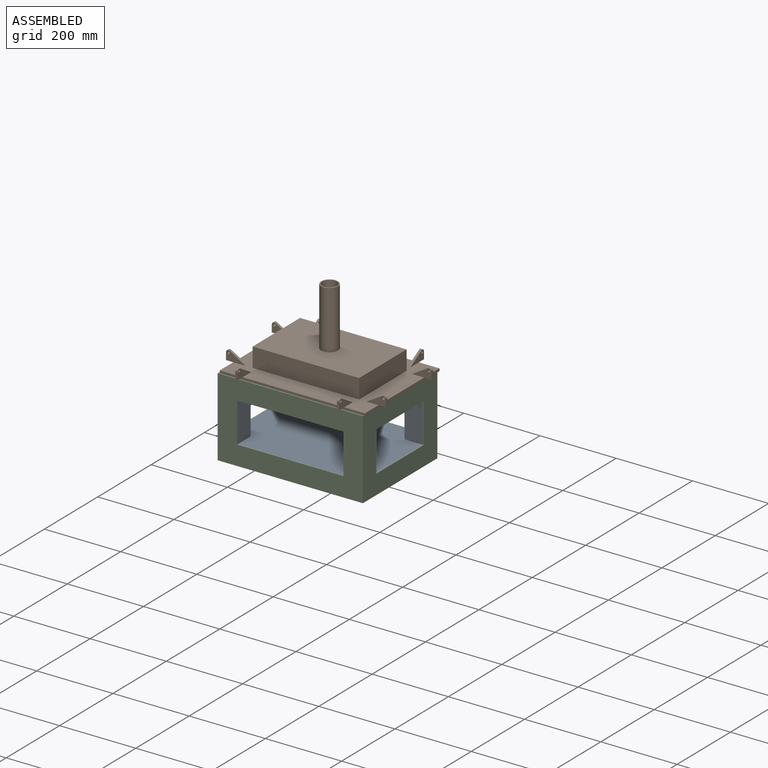
[diagram: assembled view]
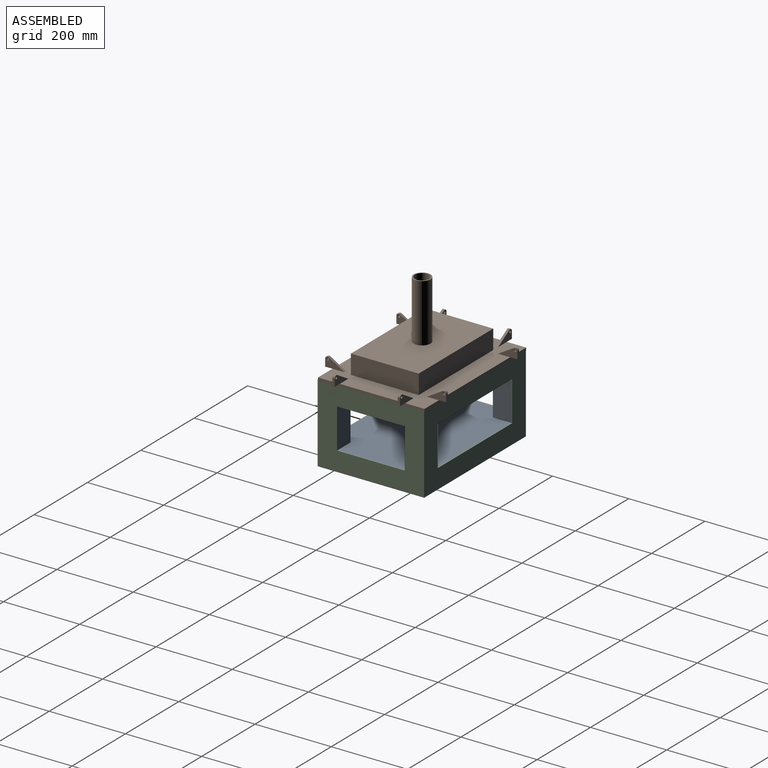
[diagram: assembled view, second angle]
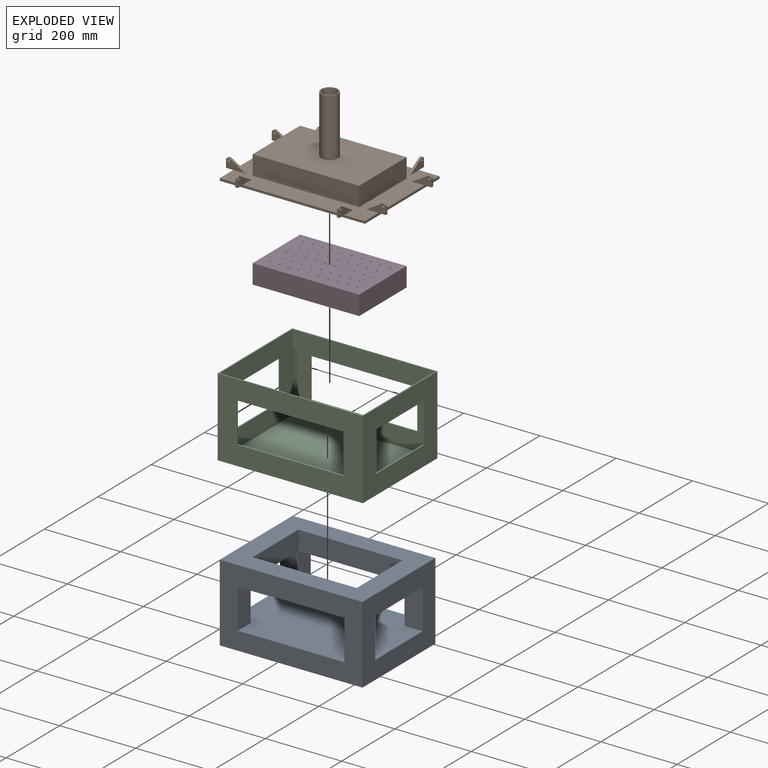
[diagram: exploded view]
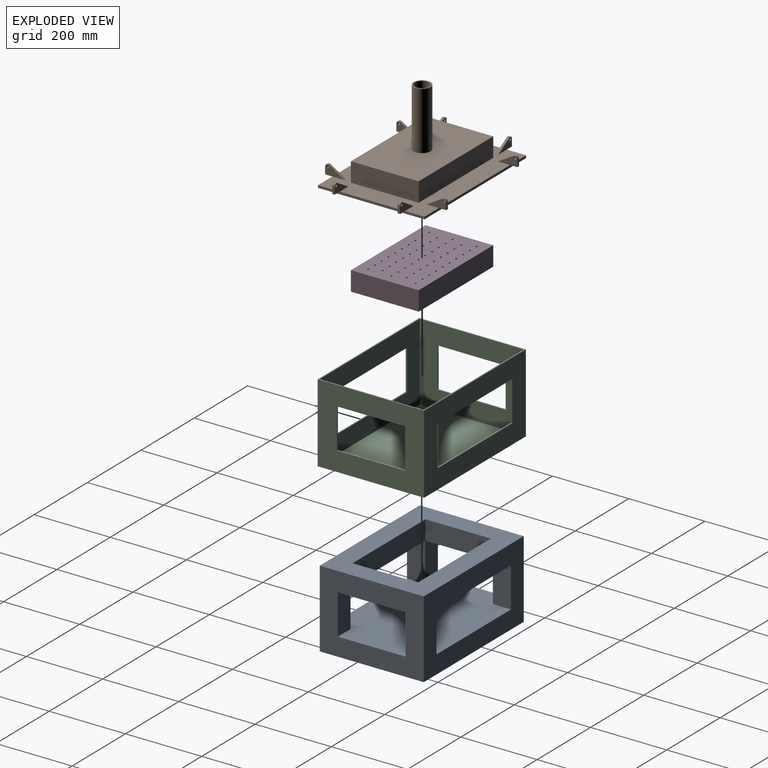
[diagram: exploded view, second angle]
ASSEMBLY  parts=4 mates=9
PART A: 20 faces, bbox 374.7x273.1x203.2 mm
  f0: plane 374.65x273.05mm, normal (0,0,1), area 93225.6mm2, adj f1,f2,f3,f4,f6,f7,f8,f9
  f1: plane 273.05x203.2mm, normal (-1,0,0), area 36854.8mm2, adj f0,f2,f4,f5,f6,f12,f14,f19
  f2: plane 374.65x203.2mm, normal (0,-1,0), area 46854.7mm2, adj f0,f1,f3,f5,f11,f13,f14,f19
  f3: plane 273.05x203.2mm, normal (1,0,0), area 36854.8mm2, adj f0,f2,f4,f5,f9,f10,f14,f19
  f4: plane 374.65x203.2mm, normal (0,1,0), area 46854.7mm2, adj f0,f1,f3,f5,f7,f8,f14,f19
  f5: plane 374.65x273.05mm, normal (0,0,-1), area 102298.2mm2, adj f1,f2,f3,f4
  f6: plane 104.78x47.63mm, normal (0,-1,0), area 4989.9mm2, adj f0,f1,f7,f14
  f7: plane 104.78x47.63mm, normal (1,0,0), area 4989.9mm2, adj f0,f4,f6,f14
  f8: plane 104.78x47.63mm, normal (-1,0,0), area 4989.9mm2, adj f0,f4,f9,f14
  f9: plane 104.78x47.63mm, normal (0,-1,0), area 4989.9mm2, adj f0,f3,f8,f14
  f10: plane 104.78x47.63mm, normal (0,1,0), area 4989.9mm2, adj f0,f3,f11,f14
  f11: plane 104.78x47.63mm, normal (-1,0,0), area 4989.9mm2, adj f0,f2,f10,f14
  f12: plane 104.78x47.63mm, normal (0,1,0), area 4989.9mm2, adj f0,f1,f13,f14
  f13: plane 104.78x47.63mm, normal (1,0,0), area 4989.9mm2, adj f0,f2,f12,f14
  f14: plane 374.65x273.05mm, normal (0,0,-1), area 46411.2mm2, adj f1,f2,f3,f4,f6,f7,f8,f9
  f15: plane 171.45x50.8mm, normal (-1,0,0), area 8709.7mm2, adj f14,f16,f18,f19
  f16: plane 273.05x50.8mm, normal (0,1,0), area 13870.9mm2, adj f14,f15,f17,f19
  f17: plane 171.45x50.8mm, normal (1,0,0), area 8709.7mm2, adj f14,f16,f18,f19
  f18: plane 273.05x50.8mm, normal (0,-1,0), area 13870.9mm2, adj f14,f15,f17,f19
  f19: plane 374.65x273.05mm, normal (0,0,1), area 55483.8mm2, adj f1,f2,f3,f4,f15,f16,f17,f18
PART B: 80 faces, bbox 419.1x317.5x209.6 mm
  f0: plane 50.8x25.4mm, normal (-1,0,0), area 707.4mm2, adj f9,f20,f46,f69,f78,f79
  f1: plane 50.8x25.4mm, normal (1,0,0), area 707.4mm2, adj f9,f20,f46,f69,f78,f79
  f2: plane 50.8x25.4mm, normal (-1,0,0), area 707.4mm2, adj f10,f20,f47,f68,f76,f77
  f3: plane 50.8x25.4mm, normal (1,0,0), area 707.4mm2, adj f4,f20,f44,f73,f74,f75
  f4: plane 19.05x6.35mm, normal (0,1,0), area 121mm2, adj f3,f5,f44,f74
  f5: plane 50.8x25.4mm, normal (-1,0,0), area 707.4mm2, adj f4,f20,f44,f73,f74,f75
  f6: plane 50.8x25.4mm, normal (1,0,0), area 707.4mm2, adj f7,f20,f45,f70,f71,f72
  f7: plane 19.05x6.35mm, normal (0,1,0), area 121mm2, adj f6,f8,f45,f70
  f8: plane 50.8x25.4mm, normal (-1,0,0), area 707.4mm2, adj f7,f20,f45,f70,f71,f72
  f9: plane 19.05x6.35mm, normal (0,-1,0), area 121mm2, adj f0,f1,f46,f69
  f10: plane 19.05x6.35mm, normal (0,-1,0), area 121mm2, adj f2,f47,f48,f68
  f11: plane 50.8x25.4mm, normal (0,1,0), area 707.4mm2, adj f14,f20,f49,f59,f66,f67
  f12: plane 50.8x25.4mm, normal (0,-1,0), area 707.4mm2, adj f14,f20,f49,f59,f66,f67
  f13: plane 50.8x25.4mm, normal (0,1,0), area 707.4mm2, adj f20,f51,f52,f57,f60,f63
  f14: plane 19.05x6.35mm, normal (-1,0,0), area 121mm2, adj f11,f12,f49,f59
  f15: plane 19.05x6.35mm, normal (1,0,0), area 121mm2, adj f16,f17,f50,f58
  f16: plane 50.8x25.4mm, normal (0,1,0), area 707.4mm2, adj f15,f20,f50,f58,f64,f65
  f17: plane 50.8x25.4mm, normal (0,-1,0), area 707.4mm2, adj f15,f20,f50,f58,f64,f65
  f18: plane 50.8x25.4mm, normal (0,-1,0), area 707.4mm2, adj f20,f54,f55,f56,f61,f62
  f19: plane 50.8x25.4mm, normal (0,1,0), area 707.4mm2, adj f20,f54,f55,f56,f61,f62
  f20: plane 381x279.4mm, normal (0,0,1), area 55161.2mm2, adj f0,f1,f2,f3,f5,f6,f8,f11
  f21: plane 177.8x50.8mm, normal (-1,0,0), area 9032.2mm2, adj f20,f22,f24,f36
  f22: plane 279.4x50.8mm, normal (0,1,0), area 14193.5mm2, adj f20,f21,f25,f36
  f23: plane 273.05x171.45mm, normal (0,0,1), area 8104.8mm2, adj f26,f27,f28,f29,f31,f32,f33,f34
  f24: plane 279.4x50.8mm, normal (0,-1,0), area 14193.5mm2, adj f20,f21,f25,f36
  f25: plane 177.8x50.8mm, normal (1,0,0), area 9032.2mm2, adj f20,f22,f24,f36
  f26: plane 152.4x3.18mm, normal (-1,0,0), area 483.9mm2, adj f23,f27,f29,f30
  f27: plane 254x3.18mm, normal (0,1,0), area 806.5mm2, adj f23,f26,f28,f30
  f28: plane 152.4x3.18mm, normal (1,0,0), area 483.9mm2, adj f23,f27,f29,f30
  f29: plane 254x3.18mm, normal (0,-1,0), area 806.5mm2, adj f23,f26,f28,f30
  f30: plane 381x279.4mm, normal (0,0,-1), area 67741.8mm2, adj f26,f27,f28,f29,f40,f41,f42,f43
  f31: plane 171.45x50.8mm, normal (-1,0,0), area 8709.7mm2, adj f23,f32,f34,f37
  f32: plane 273.05x50.8mm, normal (0,1,0), area 13870.9mm2, adj f23,f31,f33,f37
  f33: plane 171.45x50.8mm, normal (1,0,0), area 8709.7mm2, adj f23,f32,f34,f37
  f34: plane 273.05x50.8mm, normal (0,-1,0), area 13870.9mm2, adj f23,f31,f33,f37
  f35: cylinder r=19.14mm len=155.58mm, axis (0,0,-1), area 18708.4mm2, adj f37,f39
  f36: plane 279.4x177.8mm, normal (0,0,1), area 48130.8mm2, adj f21,f22,f24,f25,f38
  f37: plane 273.05x171.45mm, normal (0,0,-1), area 45663.7mm2, adj f31,f32,f33,f34,f35
  f38: cylinder r=22.19mm len=152.4mm, axis (0,0,-1), area 21245.2mm2, adj f36,f39
  f39: plane 44.37x44.37mm, normal (0,0,1), area 395.7mm2, adj f35,f38
  f40: plane 381x6.35mm, normal (0,-1,0), area 2419.4mm2, adj f20,f30,f42,f43,f46,f47
  f41: plane 381x6.35mm, normal (0,1,0), area 2419.4mm2, adj f20,f30,f42,f43,f44,f45
  f42: plane 279.4x6.35mm, normal (1,0,0), area 1774.2mm2, adj f20,f30,f40,f41,f50,f54
  f43: plane 279.4x6.35mm, normal (-1,0,0), area 1774.2mm2, adj f20,f30,f40,f41,f49,f51
  f44: plane 19.05x6.35mm, normal (0,0,-1), area 121mm2, adj f3,f4,f5,f41
  f45: plane 19.05x6.35mm, normal (0,0,-1), area 121mm2, adj f6,f7,f8,f41
  f46: plane 19.05x6.35mm, normal (0,0,-1), area 121mm2, adj f0,f1,f9,f40
  f47: plane 19.05x6.35mm, normal (0,0,-1), area 121mm2, adj f2,f10,f40,f48
  f48: plane 50.8x25.4mm, normal (1,0,0), area 707.4mm2, adj f10,f20,f47,f68,f76,f77
  f49: plane 19.05x6.35mm, normal (0,0,-1), area 121mm2, adj f11,f12,f14,f43
  f50: plane 19.05x6.35mm, normal (0,0,-1), area 121mm2, adj f15,f16,f17,f42
  f51: plane 19.05x6.35mm, normal (0,0,-1), area 121mm2, adj f13,f43,f52,f53
  f52: plane 19.05x6.35mm, normal (-1,0,0), area 121mm2, adj f13,f51,f53,f57
  f53: plane 50.8x25.4mm, normal (0,-1,0), area 707.4mm2, adj f20,f51,f52,f57,f60,f63
  f54: plane 19.05x6.35mm, normal (0,0,-1), area 121mm2, adj f18,f19,f42,f55
  f55: plane 19.05x6.35mm, normal (1,0,0), area 121mm2, adj f18,f19,f54,f56
  f56: cylinder r=6.35mm len=9.6mm, axis (0,-1,0), area 85mm2, adj f18,f19,f55,f61
  f57: cylinder r=6.35mm len=9.6mm, axis (0,-1,0), area 85mm2, adj f13,f52,f53,f63
  f58: cylinder r=6.35mm len=9.6mm, axis (0,-1,0), area 85mm2, adj f15,f16,f17,f64
  f59: cylinder r=6.35mm len=9.6mm, axis (0,-1,0), area 85mm2, adj f11,f12,f14,f67
  f60: cylinder r=3.17mm len=6.35mm, axis (0,-1,0), area 126.7mm2, adj f13,f53
  f61: plane 41.2x24.51mm, normal (-0.51,0,0.86), area 304.4mm2, adj f18,f19,f20,f56
  f62: cylinder r=3.17mm len=6.35mm, axis (0,-1,0), area 126.7mm2, adj f18,f19
  f63: plane 41.2x24.51mm, normal (0.51,0,0.86), area 304.4mm2, adj f13,f20,f53,f57
  f64: plane 41.2x24.51mm, normal (-0.51,0,0.86), area 304.4mm2, adj f16,f17,f20,f58
  f65: cylinder r=3.17mm len=6.35mm, axis (0,-1,0), area 126.7mm2, adj f16,f17
  f66: cylinder r=3.17mm len=6.35mm, axis (0,-1,0), area 126.7mm2, adj f11,f12
  f67: plane 41.2x24.51mm, normal (0.51,0,0.86), area 304.4mm2, adj f11,f12,f20,f59
  f68: cylinder r=6.35mm len=9.6mm, axis (1,0,0), area 85mm2, adj f2,f10,f48,f77
  f69: cylinder r=6.35mm len=9.6mm, axis (1,0,0), area 85mm2, adj f0,f1,f9,f78
  f70: cylinder r=6.35mm len=9.6mm, axis (1,0,0), area 85mm2, adj f6,f7,f8,f71
  f71: plane 41.2x24.51mm, normal (0,-0.51,0.86), area 304.4mm2, adj f6,f8,f20,f70
  f72: cylinder r=3.17mm len=6.35mm, axis (1,0,0), area 126.7mm2, adj f6,f8
  f73: plane 41.2x24.51mm, normal (0,-0.51,0.86), area 304.4mm2, adj f3,f5,f20,f74
  f74: cylinder r=6.35mm len=9.6mm, axis (1,0,0), area 85mm2, adj f3,f4,f5,f73
  f75: cylinder r=3.17mm len=6.35mm, axis (1,0,0), area 126.7mm2, adj f3,f5
  f76: cylinder r=3.17mm len=6.35mm, axis (1,0,0), area 126.7mm2, adj f2,f48
  f77: plane 41.2x24.51mm, normal (0,0.51,0.86), area 304.4mm2, adj f2,f20,f48,f68
  f78: plane 41.2x24.51mm, normal (0,0.51,0.86), area 304.4mm2, adj f0,f1,f20,f69
  f79: cylinder r=3.17mm len=6.35mm, axis (1,0,0), area 126.7mm2, adj f0,f1
PART C: 27 faces, bbox 381x279.4x206.4 mm
  f0: plane 381x206.38mm, normal (0,-1,0), area 49354.7mm2, adj f4,f5,f6,f9,f11,f12,f13,f14
  f1: plane 381x206.38mm, normal (0,1,0), area 49354.7mm2, adj f4,f5,f6,f9,f15,f16,f17,f18
  f2: plane 374.65x203.2mm, normal (0,-1,0), area 46854.7mm2, adj f7,f8,f9,f10,f15,f16,f17,f18
  f3: plane 374.65x203.2mm, normal (0,1,0), area 46854.7mm2, adj f7,f8,f9,f10,f11,f12,f13,f14
  f4: plane 279.4x206.38mm, normal (-1,0,0), area 39032.2mm2, adj f0,f1,f6,f9,f23,f24,f25,f26
  f5: plane 279.4x206.38mm, normal (1,0,0), area 39032.2mm2, adj f0,f1,f6,f9,f19,f20,f21,f22
  f6: plane 381x279.4mm, normal (0,0,-1), area 106451.4mm2, adj f0,f1,f4,f5
  f7: plane 273.05x203.2mm, normal (1,0,0), area 36854.8mm2, adj f2,f3,f9,f10,f23,f24,f25,f26
  f8: plane 273.05x203.2mm, normal (-1,0,0), area 36854.8mm2, adj f2,f3,f9,f10,f19,f20,f21,f22
  f9: plane 381x279.4mm, normal (0,0,1), area 4153.2mm2, adj f0,f1,f2,f3,f4,f5,f7,f8
  f10: plane 374.65x273.05mm, normal (0,0,1), area 102298.2mm2, adj f2,f3,f7,f8
  f11: plane 104.78x3.18mm, normal (-1,0,0), area 332.7mm2, adj f0,f3,f12,f14
  f12: plane 279.4x3.18mm, normal (0,0,1), area 887.1mm2, adj f0,f3,f11,f13
  f13: plane 104.78x3.18mm, normal (1,0,0), area 332.7mm2, adj f0,f3,f12,f14
  f14: plane 279.4x3.18mm, normal (0,0,-1), area 887.1mm2, adj f0,f3,f11,f13
  f15: plane 279.4x3.18mm, normal (0,0,-1), area 887.1mm2, adj f1,f2,f16,f18
  f16: plane 104.78x3.18mm, normal (1,0,0), area 332.7mm2, adj f1,f2,f15,f17
  f17: plane 279.4x3.18mm, normal (0,0,1), area 887.1mm2, adj f1,f2,f16,f18
  f18: plane 104.78x3.18mm, normal (-1,0,0), area 332.7mm2, adj f1,f2,f15,f17
  f19: plane 177.8x3.18mm, normal (0,0,-1), area 564.5mm2, adj f5,f8,f20,f22
  f20: plane 104.78x3.18mm, normal (0,-1,0), area 332.7mm2, adj f5,f8,f19,f21
  f21: plane 177.8x3.18mm, normal (0,0,1), area 564.5mm2, adj f5,f8,f20,f22
  f22: plane 104.78x3.18mm, normal (0,1,0), area 332.7mm2, adj f5,f8,f19,f21
  f23: plane 104.78x3.18mm, normal (0,1,0), area 332.7mm2, adj f4,f7,f24,f26
  f24: plane 177.8x3.18mm, normal (0,0,1), area 564.5mm2, adj f4,f7,f23,f25
  f25: plane 104.78x3.18mm, normal (0,-1,0), area 332.7mm2, adj f4,f7,f24,f26
  f26: plane 177.8x3.18mm, normal (0,0,-1), area 564.5mm2, adj f4,f7,f23,f25
PART D: 54 faces, bbox 279.4x177.8x50.8 mm
  f0: plane 177.8x50.8mm, normal (-1,0,0), area 9032.2mm2, adj f1,f50,f52,f53
  f1: plane 279.4x50.8mm, normal (0,-1,0), area 14193.5mm2, adj f0,f2,f52,f53
  f2: plane 177.8x50.8mm, normal (1,0,0), area 9032.2mm2, adj f1,f50,f52,f53
  f3: cylinder r=2.38mm len=50.8mm, axis (0,0,-1), area 760.1mm2, adj f52,f53
  f4: cylinder r=2.38mm len=50.8mm, axis (0,0,-1), area 760.1mm2, adj f52,f53
  f5: cylinder r=2.38mm len=50.8mm, axis (0,0,-1), area 760.1mm2, adj f52,f53
  f6: cylinder r=2.38mm len=50.8mm, axis (0,0,-1), area 760.1mm2, adj f52,f53
  f7: cylinder r=2.38mm len=50.8mm, axis (0,0,-1), area 760.1mm2, adj f52,f53
  f8: cylinder r=2.38mm len=50.8mm, axis (0,0,-1), area 760.1mm2, adj f52,f53
  f9: cylinder r=2.38mm len=50.8mm, axis (0,0,-1), area 760.1mm2, adj f52,f53
  f10: cylinder r=2.38mm len=50.8mm, axis (0,0,-1), area 760.1mm2, adj f52,f53
  f11: cylinder r=2.38mm len=50.8mm, axis (0,0,-1), area 760.1mm2, adj f52,f53
  f12: cylinder r=2.38mm len=50.8mm, axis (0,0,-1), area 760.1mm2, adj f52,f53
  f13: cylinder r=2.38mm len=50.8mm, axis (0,0,-1), area 760.1mm2, adj f52,f53
  f14: cylinder r=2.38mm len=50.8mm, axis (0,0,-1), area 760.1mm2, adj f52,f53
  f15: cylinder r=2.38mm len=50.8mm, axis (0,0,-1), area 760.1mm2, adj f52,f53
  f16: cylinder r=2.38mm len=50.8mm, axis (0,0,-1), area 760.1mm2, adj f52,f53
  f17: cylinder r=2.38mm len=50.8mm, axis (0,0,-1), area 760.1mm2, adj f52,f53
  f18: cylinder r=2.38mm len=50.8mm, axis (0,0,-1), area 760.1mm2, adj f52,f53
  f19: cylinder r=2.38mm len=50.8mm, axis (0,0,-1), area 760.1mm2, adj f52,f53
  f20: cylinder r=2.38mm len=50.8mm, axis (0,0,-1), area 760.1mm2, adj f52,f53
  f21: cylinder r=2.38mm len=50.8mm, axis (0,0,-1), area 760.1mm2, adj f52,f53
  f22: cylinder r=2.38mm len=50.8mm, axis (0,0,-1), area 760.1mm2, adj f52,f53
  f23: cylinder r=2.38mm len=50.8mm, axis (0,0,-1), area 760.1mm2, adj f52,f53
  f24: cylinder r=2.38mm len=50.8mm, axis (0,0,-1), area 760.1mm2, adj f52,f53
  f25: cylinder r=2.38mm len=50.8mm, axis (0,0,-1), area 760.1mm2, adj f52,f53
  f26: cylinder r=2.38mm len=50.8mm, axis (0,0,-1), area 760.1mm2, adj f52,f53
  f27: cylinder r=2.38mm len=50.8mm, axis (0,0,-1), area 760.1mm2, adj f52,f53
  f28: cylinder r=2.38mm len=50.8mm, axis (0,0,-1), area 760.1mm2, adj f52,f53
  f29: cylinder r=2.38mm len=50.8mm, axis (0,0,-1), area 760.1mm2, adj f52,f53
  f30: cylinder r=2.38mm len=50.8mm, axis (0,0,-1), area 760.1mm2, adj f52,f53
  f31: cylinder r=2.38mm len=50.8mm, axis (0,0,-1), area 760.1mm2, adj f52,f53
  f32: cylinder r=2.38mm len=50.8mm, axis (0,0,-1), area 760.1mm2, adj f52,f53
  f33: cylinder r=2.38mm len=50.8mm, axis (0,0,-1), area 760.1mm2, adj f52,f53
  f34: cylinder r=2.38mm len=50.8mm, axis (0,0,-1), area 760.1mm2, adj f52,f53
  f35: cylinder r=2.38mm len=50.8mm, axis (0,0,-1), area 760.1mm2, adj f52,f53
  f36: cylinder r=2.38mm len=50.8mm, axis (0,0,-1), area 760.1mm2, adj f52,f53
  f37: cylinder r=2.38mm len=50.8mm, axis (0,0,-1), area 760.1mm2, adj f52,f53
  f38: cylinder r=2.38mm len=50.8mm, axis (0,0,-1), area 760.1mm2, adj f52,f53
  f39: cylinder r=2.38mm len=50.8mm, axis (0,0,-1), area 760.1mm2, adj f52,f53
  f40: cylinder r=2.38mm len=50.8mm, axis (0,0,-1), area 760.1mm2, adj f52,f53
  f41: cylinder r=2.38mm len=50.8mm, axis (0,0,-1), area 760.1mm2, adj f52,f53
  f42: cylinder r=2.38mm len=50.8mm, axis (0,0,-1), area 760.1mm2, adj f52,f53
  f43: cylinder r=2.38mm len=50.8mm, axis (0,0,-1), area 760.1mm2, adj f52,f53
  f44: cylinder r=2.38mm len=50.8mm, axis (0,0,-1), area 760.1mm2, adj f52,f53
  f45: cylinder r=2.38mm len=50.8mm, axis (0,0,-1), area 760.1mm2, adj f52,f53
  f46: cylinder r=2.38mm len=50.8mm, axis (0,0,-1), area 760.1mm2, adj f52,f53
  f47: cylinder r=2.38mm len=50.8mm, axis (0,0,-1), area 760.1mm2, adj f52,f53
  f48: cylinder r=2.38mm len=50.8mm, axis (0,0,-1), area 760.1mm2, adj f52,f53
  f49: cylinder r=2.38mm len=50.8mm, axis (0,0,-1), area 760.1mm2, adj f52,f53
  f50: plane 279.4x50.8mm, normal (0,1,0), area 14193.5mm2, adj f0,f2,f52,f53
  f51: cylinder r=2.38mm len=50.8mm, axis (0,0,-1), area 760.1mm2, adj f52,f53
  f52: plane 279.4x177.8mm, normal (0,0,1), area 48822.3mm2, adj f0,f1,f2,f3,f4,f5,f6,f7
  f53: plane 279.4x177.8mm, normal (0,0,-1), area 48822.3mm2, adj f0,f1,f2,f3,f4,f5,f6,f7
PLACE A t=(57.1,-89.1,534.03)mm
PLACE B t=(111.07,-35.12,689.6)mm
PLACE C t=(57.1,-89.1,534.03)mm
PLACE D t=(111.07,-35.12,689.6)mm
MATE planar B.f25 <-> D.f2  axis (1,0,0) through (390.47,53.78,772.15)mm
MATE planar A.f19 <-> B.f35  axis (0,0,1) through (247.6,50.6,740.4)mm
MATE planar D.f0 <-> A.f17  axis (-1,0,0) through (111.07,53.78,715)mm
MATE planar C.f10 <-> A.f5  axis (0,0,1) through (247.6,50.6,537.2)mm
MATE planar A.f2 <-> C.f3  axis (0,-1,0) through (247.6,-85.92,639.79)mm
MATE planar D.f1 <-> A.f16  axis (0,-1,0) through (250.77,-35.12,715)mm
MATE planar A.f3 <-> C.f8  axis (1,0,0) through (434.92,50.6,639.61)mm
MATE planar B.f35 <-> D.f52  axis (0,0,-1) through (250.77,53.78,740.4)mm
MATE planar B.f24 <-> D.f1  axis (0,-1,0) through (250.77,-35.12,772.15)mm
